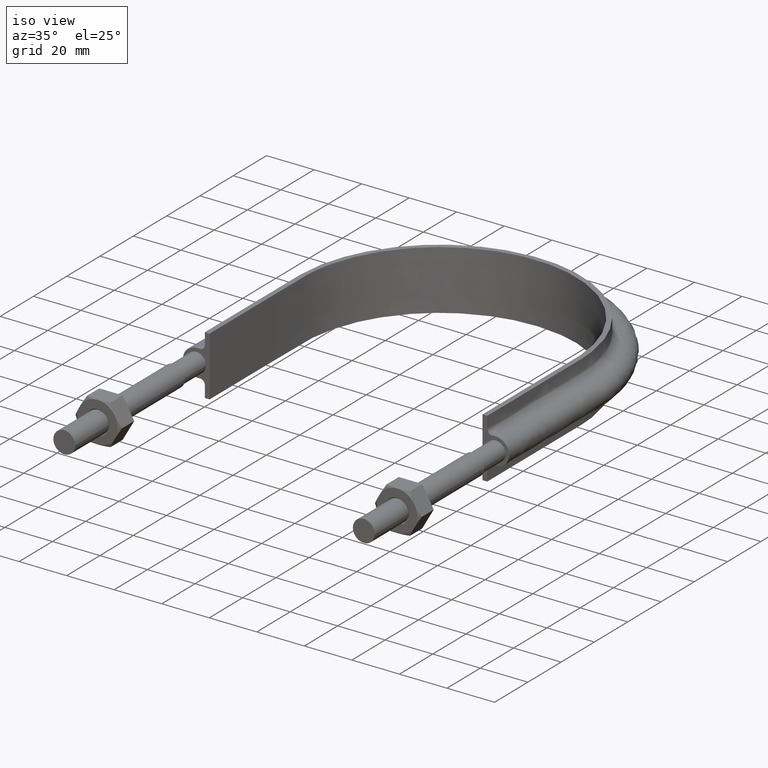
[diagram: clean part render]
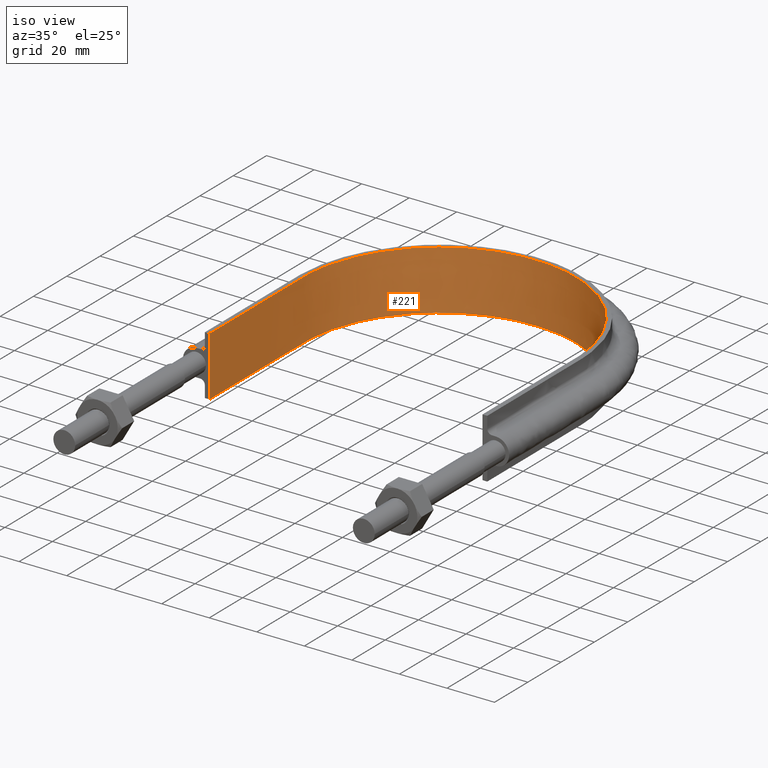
[diagram: tour spotlight — one face highlighted and labeled with its STEP entity id]
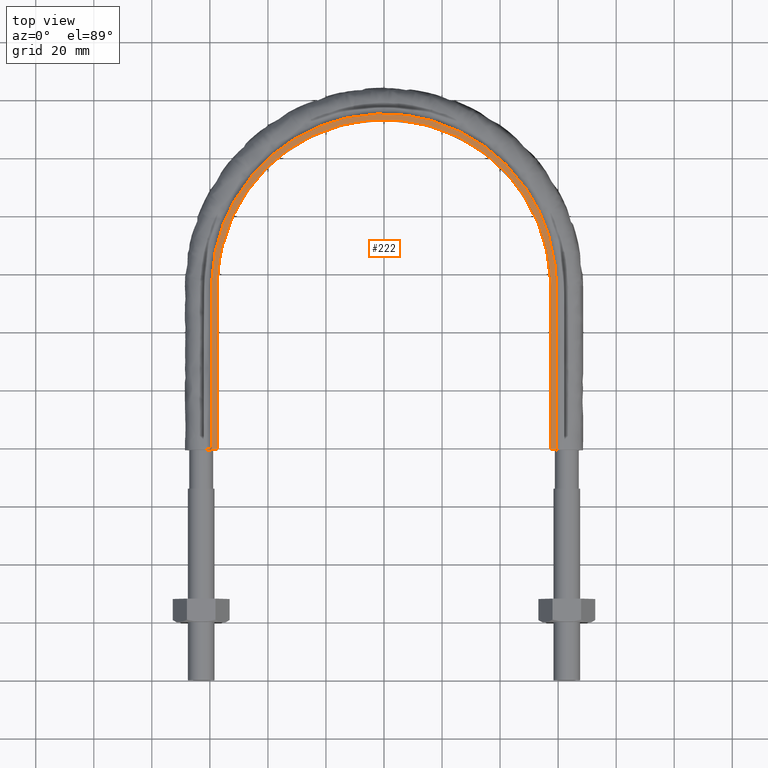
[diagram: tour spotlight — one face highlighted and labeled with its STEP entity id]
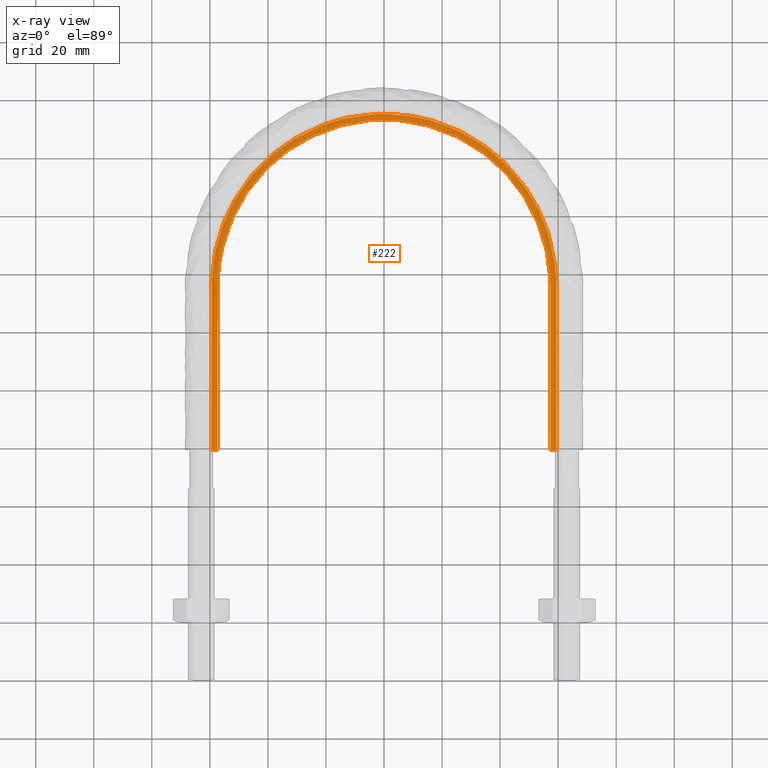
[diagram: x-ray of the same camera — body ghosted, this tour face saturated]
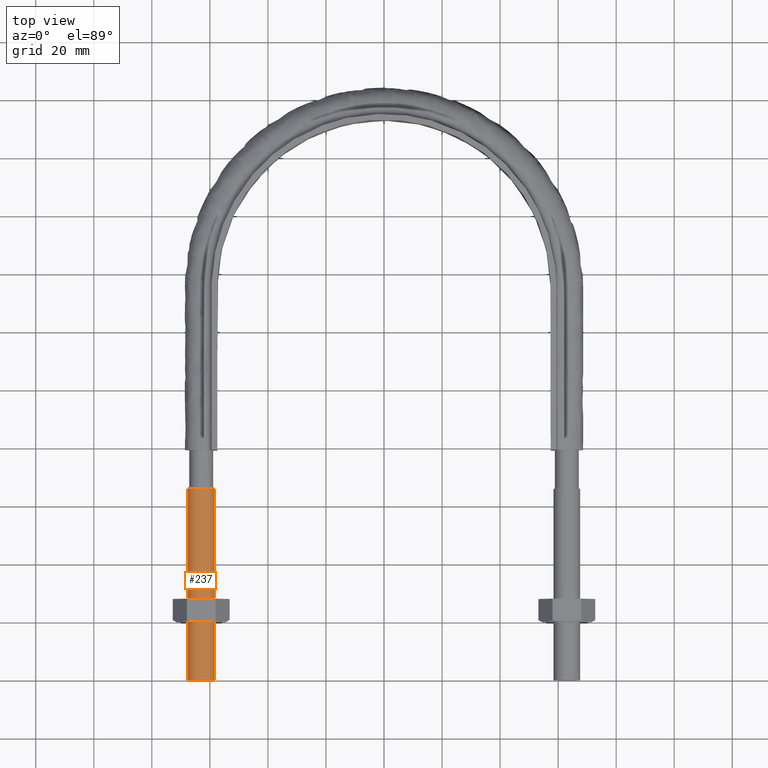
[diagram: tour spotlight — one face highlighted and labeled with its STEP entity id]
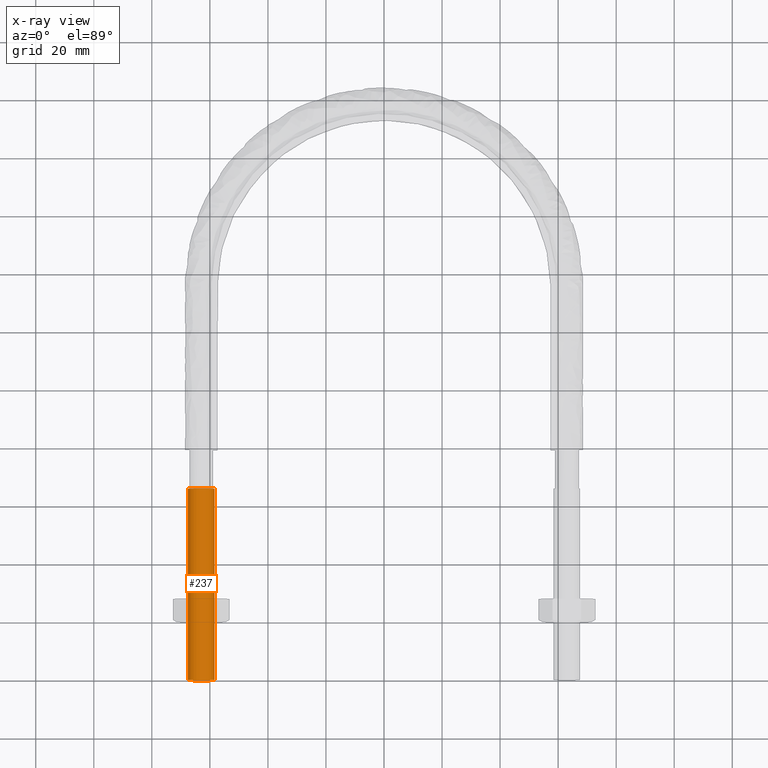
[diagram: x-ray of the same camera — body ghosted, this tour face saturated]
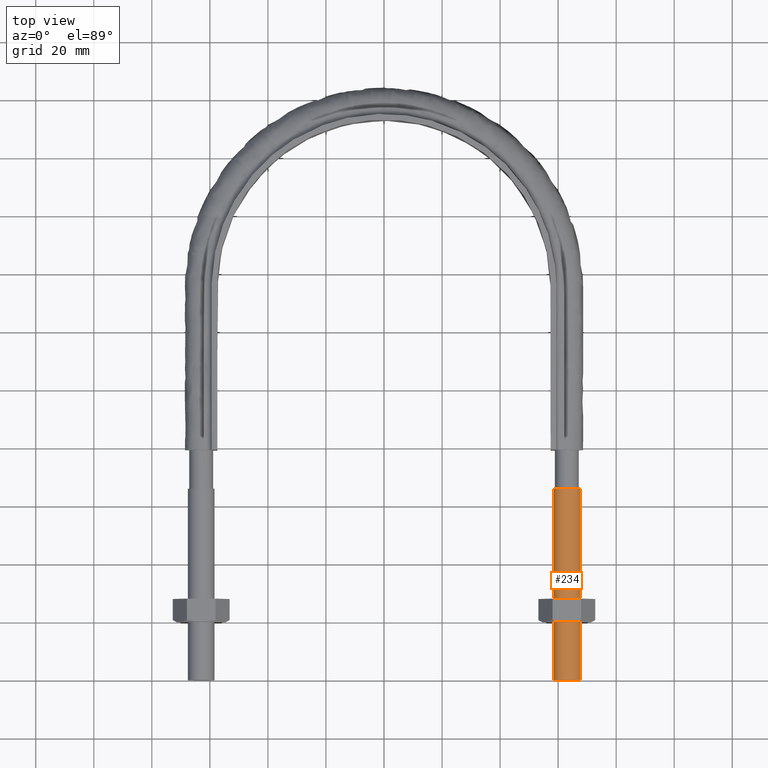
[diagram: tour spotlight — one face highlighted and labeled with its STEP entity id]
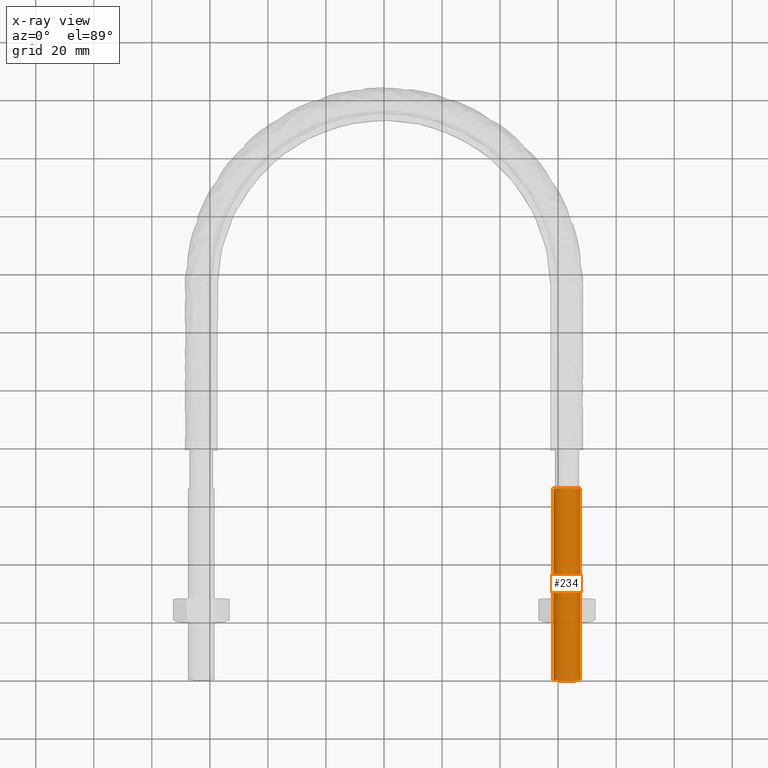
[diagram: x-ray of the same camera — body ghosted, this tour face saturated]
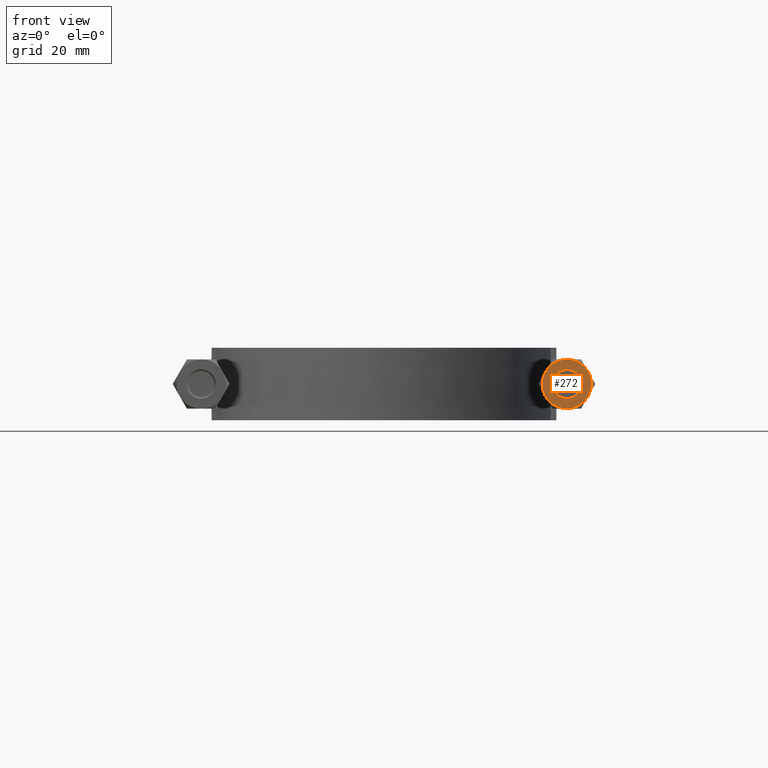
[diagram: tour spotlight — one face highlighted and labeled with its STEP entity id]
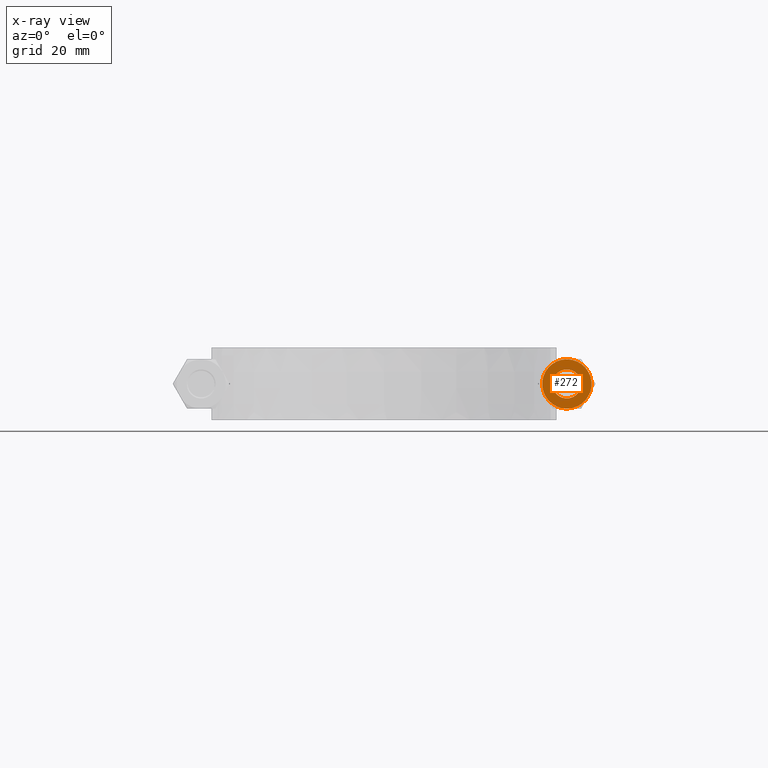
[diagram: x-ray of the same camera — body ghosted, this tour face saturated]
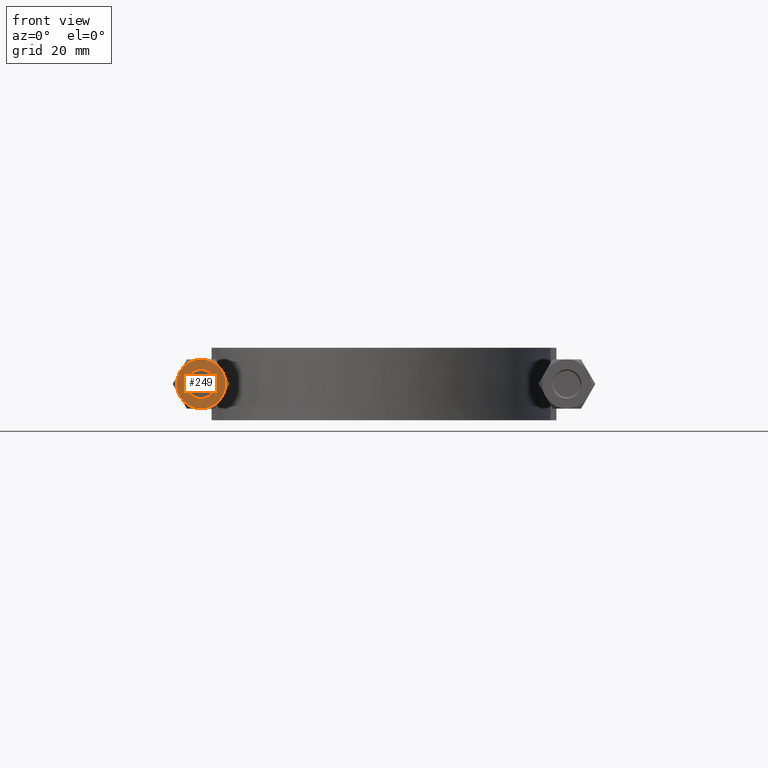
[diagram: tour spotlight — one face highlighted and labeled with its STEP entity id]
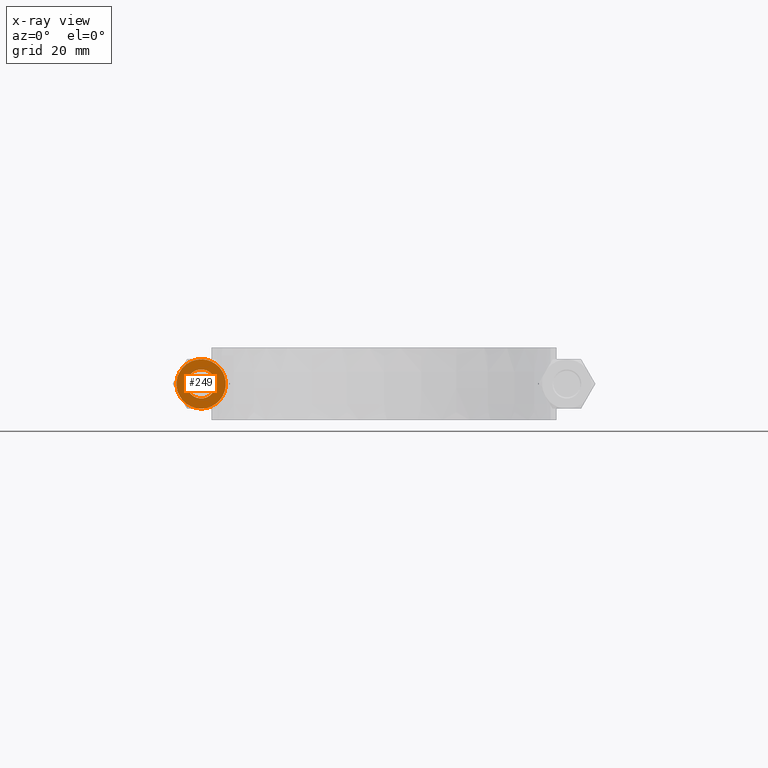
[diagram: x-ray of the same camera — body ghosted, this tour face saturated]
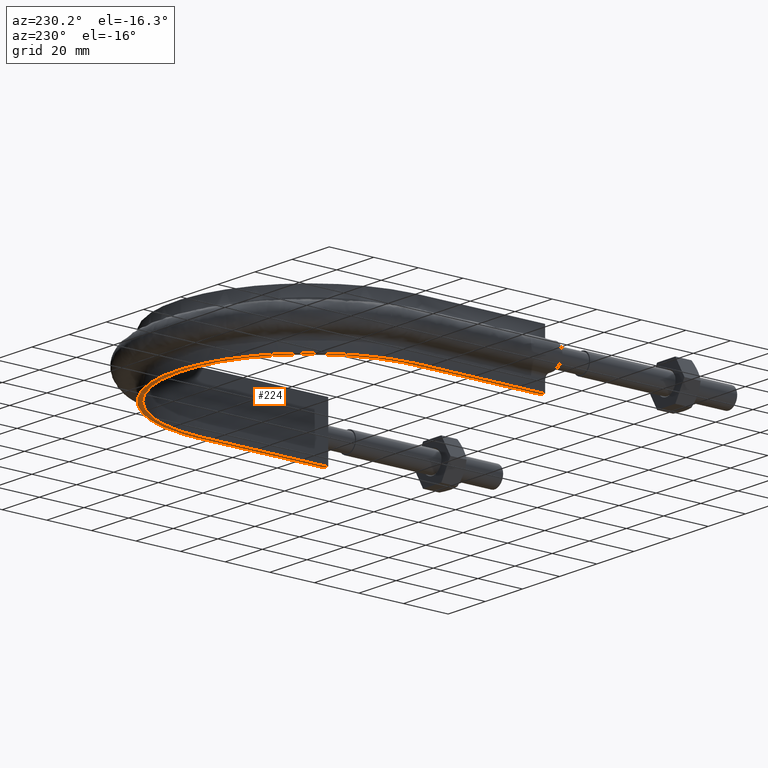
[diagram: tour spotlight — one face highlighted and labeled with its STEP entity id]
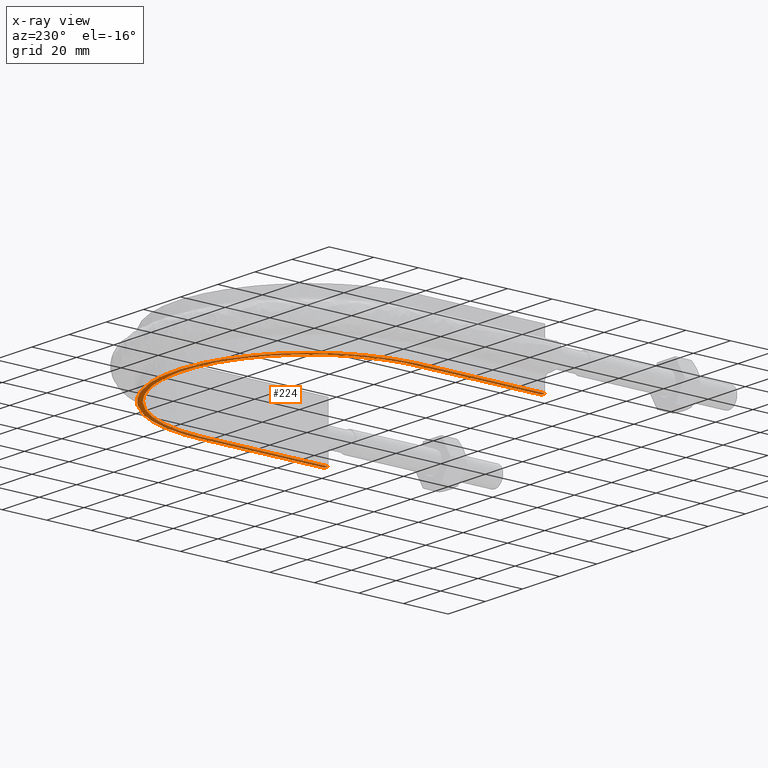
[diagram: x-ray of the same camera — body ghosted, this tour face saturated]
A machine part: a face-by-face anatomy tour. The part has 75 B-rep faces; the first image is the clean iso view, then the 7 largest visible faces are spotlighted one at a time (largest first), each with its STEP entity span.

Face 1 — iso view, entity #221. In plain terms, the highlighted face is a SurfaceOfExtrusion surface.
Definition (entity closure, byte-faithful):
#221 = ADVANCED_FACE( '', ( #299 ), #300, .T. );
#299 = FACE_OUTER_BOUND( '', #466, .T. );
#300 = SURFACE_OF_LINEAR_EXTRUSION( '', #467, #468 );
#466 = EDGE_LOOP( '', ( #1298, #1299, #1300, #1301 ) );
#467 = B_SPLINE_CURVE_WITH_KNOTS( '', 3, ( #1302, #1303, #1304, #1305, #1306, #1307, #1308, #1309, #1310, #1311, #1312, #1313, #1314, #1315, #1316, #1317 ), .UNSPECIFIED., .F., .F., ( 4, 3, 1, 1, 1, 1, 1, 1, 3, 4 ), ( -8.93693843594010, -8.00000000000000, -7.00000000000000, -6.00000000000000, -5.00000000000000, -4.00000000000000, -3.00000000000000, -2.00000000000000, -1.00000000000000, -0.0630615640599001 ), .UNSPECIFIED. );
#468 = VECTOR( '', #1318, 1000.00000000000 );
#1298 = ORIENTED_EDGE( '', *, *, #1817, .T. );
#1299 = ORIENTED_EDGE( '', *, *, #1825, .T. );
#1300 = ORIENTED_EDGE( '', *, *, #1822, .F. );
#1301 = ORIENTED_EDGE( '', *, *, #1826, .T. );
#1302 = CARTESIAN_POINT( '', ( 57.4000000000000, 79.3000000000000, 12.5000100000910 ) );
#1303 = CARTESIAN_POINT( '', ( 57.4000000000000, 98.0700000000000, 12.5000100000910 ) );
#1304 = CARTESIAN_POINT( '', ( 57.4000000000000, 116.840000000000, 12.5000100000910 ) );
#1305 = CARTESIAN_POINT( '', ( 57.4000000000000, 135.610000000000, 12.5000100000910 ) );
#1306 = CARTESIAN_POINT( '', ( 57.4000000000000, 144.180493203978, 12.5000100000910 ) );
#1307 = CARTESIAN_POINT( '', ( 53.4810424094545, 161.371852668646, 12.5000100000910 ) );
#1308 = CARTESIAN_POINT( '', ( 37.0100296725023, 182.017335605858, 12.5000100000910 ) );
#1309 = CARTESIAN_POINT( '', ( 13.2087266606841, 193.481567469912, 12.5000100000910 ) );
#1310 = CARTESIAN_POINT( '', ( -13.2087266606841, 193.481567469912, 12.5000100000910 ) );
#1311 = CARTESIAN_POINT( '', ( -37.0100296725023, 182.017335605858, 12.5000100000910 ) );
#1312 = CARTESIAN_POINT( '', ( -53.4810424094545, 161.371852668646, 12.5000100000910 ) );
#1313 = CARTESIAN_POINT( '', ( -57.4000000000000, 144.180493203978, 12.5000100000910 ) );
#1314 = CARTESIAN_POINT( '', ( -57.4000000000000, 135.610000000000, 12.5000100000910 ) );
#1315 = CARTESIAN_POINT( '', ( -57.4000000000000, 116.840000000000, 12.5000100000910 ) );
#1316 = CARTESIAN_POINT( '', ( -57.4000000000000, 98.0700000000000, 12.5000100000910 ) );
#1317 = CARTESIAN_POINT( '', ( -57.4000000000000, 79.3000000000000, 12.5000100000910 ) );
#1318 = DIRECTION( '', ( 0.000000000000000, 0.000000000000000, -1.00000000000000 ) );
#1817 = EDGE_CURVE( '', #1967, #1968, #1969, .T. );
#1822 = EDGE_CURVE( '', #1975, #1978, #1979, .T. );
#1825 = EDGE_CURVE( '', #1968, #1978, #1983, .F. );
#1826 = EDGE_CURVE( '', #1975, #1967, #1984, .T. );
#1967 = VERTEX_POINT( '', #2213 );
#1968 = VERTEX_POINT( '', #2214 );
#1969 = LINE( '', #2215, #2216 );
#1975 = VERTEX_POINT( '', #2254 );
#1978 = VERTEX_POINT( '', #2258 );
#1979 = LINE( '', #2259, #2260 );
#1983 = B_SPLINE_CURVE_WITH_KNOTS( '', 3, ( #2295, #2296, #2297, #2298, #2299, #2300, #2301, #2302, #2303, #2304, #2305, #2306, #2307, #2308, #2309, #2310 ), .UNSPECIFIED., .F., .F., ( 4, 3, 1, 1, 1, 1, 1, 1, 3, 4 ), ( -8.93693843594010, -8.00000000000000, -7.00000000000000, -6.00000000000000, -5.00000000000000, -4.00000000000000, -3.00000000000000, -2.00000000000000, -1.00000000000000, -0.0630615640599001 ), .UNSPECIFIED. );
#1984 = B_SPLINE_CURVE_WITH_KNOTS( '', 3, ( #2311, #2312, #2313, #2314, #2315, #2316, #2317, #2318, #2319, #2320, #2321, #2322, #2323, #2324, #2325, #2326, #2327, #2328, #2329, #2330, #2331, #2332, #2333, #2334, #2335, #2336, #2337, #2338, #2339, #2340, #2341, #2342, #2343, #2344, #2345, #2346, #2347, #2348, #2349, #2350, #2351, #2352, #2353, #2354, #2355, #2356, #2357, #2358, #2359, #2360, #2361, #2362, #2363, #2364, #2365, #2366, #2367, #2368, #2369, #2370, #2371, #2372, #2373, #2374, #2375, #2376, #2377, #2378, #2379, #2380, #2381, #2382, #2383, #2384, #2385, #2386, #2387, #2388, #2389, #2390, #2391, #2392, #2393, #2394, #2395, #2396, #2397, #2398 ), .UNSPECIFIED., .F., .F., ( 4, 1, 2, 2, 2, 2, 2, 2, 2, 2, 2, 2, 2, 2, 2, 2, 2, 2, 2, 2, 2, 2, 2, 2, 2, 2, 2, 2, 2, 2, 2, 2, 2, 2, 2, 2, 2, 2, 2, 2, 2, 2, 2, 1, 4 ), ( 1.38777878078145E-017, 0.0368006591004070, 0.0552009886506104, 0.0575010298443858, 0.0598010710381612, 0.0644011534257120, 0.0736013182008137, 0.0782014005883644, 0.0805014417821398, 0.0828014829759152, 0.0920016477510167, 0.0966017301385675, 0.0989017713323428, 0.101201812526118, 0.110401977301220, 0.115002059688771, 0.117302100882546, 0.119602142076321, 0.128802306851423, 0.133402389238974, 0.135702430432749, 0.138002471626525, 0.147202636401626, 0.156402801176728, 0.158702842370503, 0.161002883564279, 0.165602965951830, 0.174803130726931, 0.177103171920707, 0.179403213114482, 0.184003295502033, 0.193203460277135, 0.195503501470910, 0.197803542664686, 0.202403625052237, 0.211603789827339, 0.213903831021114, 0.216203872214890, 0.220803954602440, 0.230004119377542, 0.234604201765093, 0.236904242958868, 0.239204284152644, 0.257604613702848, 0.294405272803255 ), .UNSPECIFIED. );
#2213 = CARTESIAN_POINT( '', ( -57.4000000000000, 79.3000000000000, 12.5000000000000 ) );
#2214 = CARTESIAN_POINT( '', ( -57.4000000000000, 79.3000000000000, -12.5000000000000 ) );
#2215 = CARTESIAN_POINT( '', ( -57.4000000000000, 79.3000000000000, 12.5000100000910 ) );
#2216 = VECTOR( '', #2871, 1000.00000000000 );
#2254 = CARTESIAN_POINT( '', ( 57.4000000000000, 79.3000000000000, 12.5000000000000 ) );
#2258 = CARTESIAN_POINT( '', ( 57.4000000000000, 79.3000000000000, -12.5000000000000 ) );
#2259 = CARTESIAN_POINT( '', ( 57.4000000000000, 79.3000000000000, 12.5000100000910 ) );
#2260 = VECTOR( '', #2875, 1000.00000000000 );
#2295 = CARTESIAN_POINT( '', ( 57.4000000000000, 79.3000000000000, -12.5000000000000 ) );
#2296 = CARTESIAN_POINT( '', ( 57.4000000000000, 98.0700000000000, -12.5000000000000 ) );
#2297 = CARTESIAN_POINT( '', ( 57.4000000000000, 116.840000000000, -12.5000000000000 ) );
#2298 = CARTESIAN_POINT( '', ( 57.4000000000000, 135.610000000000, -12.5000000000000 ) );
#2299 = CARTESIAN_POINT( '', ( 57.4000000000000, 144.180493203978, -12.5000000000000 ) );
#2300 = CARTESIAN_POINT( '', ( 53.4810424094545, 161.371852668646, -12.5000000000000 ) );
#2301 = CARTESIAN_POINT( '', ( 37.0100296725023, 182.017335605858, -12.5000000000000 ) );
#2302 = CARTESIAN_POINT( '', ( 13.2087266606841, 193.481567469912, -12.5000000000000 ) );
#2303 = CARTESIAN_POINT( '', ( -13.2087266606841, 193.481567469912, -12.5000000000000 ) );
#2304 = CARTESIAN_POINT( '', ( -37.0100296725023, 182.017335605858, -12.5000000000000 ) );
#2305 = CARTESIAN_POINT( '', ( -53.4810424094545, 161.371852668646, -12.5000000000000 ) );
#2306 = CARTESIAN_POINT( '', ( -57.4000000000000, 144.180493203978, -12.5000000000000 ) );
#2307 = CARTESIAN_POINT( '', ( -57.4000000000000, 135.610000000000, -12.5000000000000 ) );
#2308 = CARTESIAN_POINT( '', ( -57.4000000000000, 116.840000000000, -12.5000000000000 ) );
#2309 = CARTESIAN_POINT( '', ( -57.4000000000000, 98.0700000000000, -12.5000000000000 ) );
#2310 = CARTESIAN_POINT( '', ( -57.4000000000000, 79.3000000000000, -12.5000000000000 ) );
#2311 = CARTESIAN_POINT( '', ( 57.4000000000000, 79.3000000000000, 12.5000000000000 ) );
#2312 = CARTESIAN_POINT( '', ( 57.4000000000000, 91.5668971504807, 12.5000000000000 ) );
#2313 = CARTESIAN_POINT( '', ( 57.3999999999999, 109.967242876202, 12.5000000000000 ) );
#2314 = CARTESIAN_POINT( '', ( 57.4000000000000, 128.367588601923, 12.5000000000000 ) );
#2315 = CARTESIAN_POINT( '', ( 57.4000000000000, 135.267718249068, 12.5000000000000 ) );
#2316 = CARTESIAN_POINT( '', ( 57.4036066457801, 136.034404103252, 12.5000000000000 ) );
#2317 = CARTESIAN_POINT( '', ( 57.3712056389476, 137.567723284528, 12.5000000000000 ) );
#2318 = CARTESIAN_POINT( '', ( 57.3393359788148, 138.335375304587, 12.5000000000000 ) );
#2319 = CARTESIAN_POINT( '', ( 57.1976234100830, 140.630663469964, 12.5000000000000 ) );
#2320 = CARTESIAN_POINT( '', ( 57.0421967518527, 142.147180453960, 12.5000000000000 ) );
#2321 = CARTESIAN_POINT( '', ( 56.4004013757546, 146.657352705709, 12.5000000000000 ) );
#2322 = CARTESIAN_POINT( '', ( 55.7399883057787, 149.611959318388, 12.5000000000000 ) );
#2323 = CARTESIAN_POINT( '', ( 54.4013047063944, 153.965777471156, 12.5000000000000 ) );
#2324 = CARTESIAN_POINT( '', ( 53.8966972928596, 155.403952132018, 12.5000000000000 ) );
#2325 = CARTESIAN_POINT( '', ( 53.0487681131459, 157.540793277909, 12.5000000000000 ) );
#2326 = CARTESIAN_POINT( '', ( 52.7511260023257, 158.248939019185, 12.5000000000000 ) );
#2327 = CARTESIAN_POINT( '', ( 52.1306487491250, 159.645579267383, 12.5000000000000 ) );
#2328 = CARTESIAN_POINT( '', ( 51.8071932048134, 160.335643312284, 12.5000000000000 ) );
#2329 = CARTESIAN_POINT( '', ( 50.1243560027939, 163.745011154793, 12.5000000000000 ) );
#2330 = CARTESIAN_POINT( '', ( 48.5704537429598, 166.342805722192, 12.5000000000000 ) );
#2331 = CARTESIAN_POINT( '', ( 45.9378759805746, 170.051022440817, 12.5000000000000 ) );
#2332 = CARTESIAN_POINT( '', ( 45.0097482486540, 171.255485755391, 12.5000000000000 ) );
#2333 = CARTESIAN_POINT( '', ( 43.5399840512469, 173.013724230868, 12.5000000000000 ) );
#2334 = CARTESIAN_POINT( '', ( 43.0360401908088, 173.592882580464, 12.5000000000000 ) );
#2335 = CARTESIAN_POINT( '', ( 42.0071679355062, 174.728730541199, 12.5000000000000 ) );
#2336 = CARTESIAN_POINT( '', ( 41.4830799771194, 175.284602734684, 12.5000000000000 ) );
#2337 = CARTESIAN_POINT( '', ( 38.8150256208344, 178.004509636062, 12.5000000000000 ) );
#2338 = CARTESIAN_POINT( '', ( 36.5289375337687, 179.991083678086, 12.5000000000000 ) );
#2339 = CARTESIAN_POINT( '', ( 32.8725465474707, 182.687177301449, 12.5000000000000 ) );
#2340 = CARTESIAN_POINT( '', ( 31.6159998625506, 183.538738914915, 12.5000000000000 ) );
#2341 = CARTESIAN_POINT( '', ( 29.6741600235065, 184.744883379300, 12.5000000000000 ) );
#2342 = CARTESIAN_POINT( '', ( 29.0173621705766, 185.135046972002, 12.5000000000000 ) );
#2343 = CARTESIAN_POINT( '', ( 27.6844813094560, 185.891293691475, 12.5000000000000 ) );
#2344 = CARTESIAN_POINT( '', ( 27.0092860879621, 186.256786401143, 12.5000000000000 ) );
#2345 = CARTESIAN_POINT( '', ( 23.6148955512581, 188.008321558919, 12.5000000000000 ) );
#2346 = CARTESIAN_POINT( '', ( 20.8188839208599, 189.181221130253, 12.5000000000000 ) );
#2347 = CARTESIAN_POINT( '', ( 16.5063575914379, 190.604430974850, 12.5000000000000 ) );
#2348 = CARTESIAN_POINT( '', ( 15.0489724833802, 191.022456876127, 12.5000000000000 ) );
#2349 = CARTESIAN_POINT( '', ( 12.8322199583377, 191.562489310090, 12.5000000000000 ) );
#2350 = CARTESIAN_POINT( '', ( 12.0881682606316, 191.727937467103, 12.5000000000000 ) );
#2351 = CARTESIAN_POINT( '', ( 10.5896803128535, 192.029378956679, 12.5000000000000 ) );
#2352 = CARTESIAN_POINT( '', ( 9.83354107507648, 192.165648447287, 12.5000000000000 ) );
#2353 = CARTESIAN_POINT( '', ( 6.05033946504675, 192.768951449387, 12.5000000000000 ) );
#2354 = CARTESIAN_POINT( '', ( 3.02331961872758, 193.004107282322, 12.5000000000000 ) );
#2355 = CARTESIAN_POINT( '', ( -3.03159229771697, 193.003674706656, 12.5000000000000 ) );
#2356 = CARTESIAN_POINT( '', ( -6.05948435362837, 192.768093969407, 12.5000000000000 ) );
#2357 = CARTESIAN_POINT( '', ( -9.84492369258696, 192.163681704028, 12.5000000000000 ) );
#2358 = CARTESIAN_POINT( '', ( -10.6002721762766, 192.027389123451, 12.5000000000000 ) );
#2359 = CARTESIAN_POINT( '', ( -12.0978185021846, 191.725853405146, 12.5000000000000 ) );
#2360 = CARTESIAN_POINT( '', ( -12.8414452252182, 191.560367013092, 12.5000000000000 ) );
#2361 = CARTESIAN_POINT( '', ( -15.0570550081487, 191.020235378931, 12.5000000000000 ) );
#2362 = CARTESIAN_POINT( '', ( -16.5138535706965, 190.602163316094, 12.5000000000000 ) );
#2363 = CARTESIAN_POINT( '', ( -20.8250913381978, 189.178758755140, 12.5000000000000 ) );
#2364 = CARTESIAN_POINT( '', ( -23.6208691240753, 188.005657850112, 12.5000000000000 ) );
#2365 = CARTESIAN_POINT( '', ( -27.0156329102762, 186.253406103617, 12.5000000000000 ) );
#2366 = CARTESIAN_POINT( '', ( -27.6910147520961, 185.887696886022, 12.5000000000000 ) );
#2367 = CARTESIAN_POINT( '', ( -29.0234575114924, 185.131477440111, 12.5000000000000 ) );
#2368 = CARTESIAN_POINT( '', ( -29.6800585802788, 184.741324040592, 12.5000000000000 ) );
#2369 = CARTESIAN_POINT( '', ( -31.6213689725299, 183.535193660409, 12.5000000000000 ) );
#2370 = CARTESIAN_POINT( '', ( -32.8776437603806, 182.683619457023, 12.5000000000000 ) );
#2371 = CARTESIAN_POINT( '', ( -36.5334220827474, 179.987374398228, 12.5000000000000 ) );
#2372 = CARTESIAN_POINT( '', ( -38.8193751731554, 178.000549631674, 12.5000000000000 ) );
#2373 = CARTESIAN_POINT( '', ( -41.4874843976751, 175.279993585617, 12.5000000000000 ) );
#2374 = CARTESIAN_POINT( '', ( -42.0115944312469, 174.723974530570, 12.5000000000000 ) );
#2375 = CARTESIAN_POINT( '', ( -43.0405299781913, 173.587794110931, 12.5000000000000 ) );
#2376 = CARTESIAN_POINT( '', ( -43.5442393747025, 173.008765306377, 12.5000000000000 ) );
#2377 = CARTESIAN_POINT( '', ( -45.0135877457227, 171.250627800789, 12.5000000000000 ) );
#2378 = CARTESIAN_POINT( '', ( -45.9415210243652, 170.046162448528, 12.5000000000000 ) );
#2379 = CARTESIAN_POINT( '', ( -48.5736917716304, 166.337694282144, 12.5000000000000 ) );
#2380 = CARTESIAN_POINT( '', ( -50.1275589688898, 163.739408642437, 12.5000000000000 ) );
#2381 = CARTESIAN_POINT( '', ( -51.8104283189418, 160.328866111214, 12.5000000000000 ) );
#2382 = CARTESIAN_POINT( '', ( -52.1338941649286, 159.638538815899, 12.5000000000000 ) );
#2383 = CARTESIAN_POINT( '', ( -52.7543954652597, 158.241312252746, 12.5000000000000 ) );
#2384 = CARTESIAN_POINT( '', ( -53.0520667494114, 157.532782600104, 12.5000000000000 ) );
#2385 = CARTESIAN_POINT( '', ( -53.8993605656226, 155.396631283103, 12.5000000000000 ) );
#2386 = CARTESIAN_POINT( '', ( -54.4036525659498, 153.958777453083, 12.5000000000000 ) );
#2387 = CARTESIAN_POINT( '', ( -55.7415838846628, 149.605493588584, 12.5000000000000 ) );
#2388 = CARTESIAN_POINT( '', ( -56.4017548199478, 146.650676383386, 12.5000000000000 ) );
#2389 = CARTESIAN_POINT( '', ( -57.0431251208449, 142.139233624254, 12.5000000000000 ) );
#2390 = CARTESIAN_POINT( '', ( -57.1984001624354, 140.622133130998, 12.5000000000000 ) );
#2391 = CARTESIAN_POINT( '', ( -57.3398068241163, 138.325705356889, 12.5000000000000 ) );
#2392 = CARTESIAN_POINT( '', ( -57.3715266179354, 137.558403382567, 12.5000000000000 ) );
#2393 = CARTESIAN_POINT( '', ( -57.4036727794918, 136.025333757737, 12.5000000000000 ) );
#2394 = CARTESIAN_POINT( '', ( -57.4000000000000, 135.258769855845, 12.5000000000000 ) );
#2395 = CARTESIAN_POINT( '', ( -57.4000000000000, 128.359743435262, 12.5000000000000 ) );
#2396 = CARTESIAN_POINT( '', ( -57.4000000000000, 109.962339647038, 12.5000000000000 ) );
#2397 = CARTESIAN_POINT( '', ( -57.4000000000000, 91.5649358588154, 12.5000000000000 ) );
#2398 = CARTESIAN_POINT( '', ( -57.4000000000000, 79.3000000000001, 12.5000000000000 ) );
#2871 = DIRECTION( '', ( 0.000000000000000, 0.000000000000000, -1.00000000000000 ) );
#2875 = DIRECTION( '', ( 0.000000000000000, 0.000000000000000, -1.00000000000000 ) );

Face 2 — top view, entity #222. An x-ray twin of the same camera follows (body ghosted, this face saturated) — the face is partly hidden behind the body. In plain terms, the highlighted planar face has unit normal (0, 0, 1).
Definition (entity closure, byte-faithful):
#222 = ADVANCED_FACE( '', ( #301 ), #302, .T. );
#301 = FACE_OUTER_BOUND( '', #469, .T. );
#302 = PLANE( '', #470 );
#469 = EDGE_LOOP( '', ( #1319, #1320, #1321, #1322 ) );
#470 = AXIS2_PLACEMENT_3D( '', #1323, #1324, #1325 );
#1319 = ORIENTED_EDGE( '', *, *, #1818, .T. );
#1320 = ORIENTED_EDGE( '', *, *, #1826, .F. );
#1321 = ORIENTED_EDGE( '', *, *, #1821, .T. );
#1322 = ORIENTED_EDGE( '', *, *, #1827, .F. );
#1323 = CARTESIAN_POINT( '', ( 75.0000000000000, 209.300000000000, 12.5000000000000 ) );
#1324 = DIRECTION( '', ( 0.000000000000000, 0.000000000000000, 1.00000000000000 ) );
#1325 = DIRECTION( '', ( 1.22460635382238E-016, 1.00000000000000, 0.000000000000000 ) );
#1818 = EDGE_CURVE( '', #1970, #1967, #1971, .T. );
#1821 = EDGE_CURVE( '', #1975, #1976, #1977, .T. );
#1826 = EDGE_CURVE( '', #1975, #1967, #1984, .T. );
#1827 = EDGE_CURVE( '', #1970, #1976, #1985, .T. );
#1967 = VERTEX_POINT( '', #2213 );
#1970 = VERTEX_POINT( '', #2217 );
#1971 = LINE( '', #2218, #2219 );
#1975 = VERTEX_POINT( '', #2254 );
#1976 = VERTEX_POINT( '', #2255 );
#1977 = LINE( '', #2256, #2257 );
#1984 = B_SPLINE_CURVE_WITH_KNOTS( '', 3, ( #2311, #2312, #2313, #2314, #2315, #2316, #2317, #2318, #2319, #2320, #2321, #2322, #2323, #2324, #2325, #2326, #2327, #2328, #2329, #2330, #2331, #2332, #2333, #2334, #2335, #2336, #2337, #2338, #2339, #2340, #2341, #2342, #2343, #2344, #2345, #2346, #2347, #2348, #2349, #2350, #2351, #2352, #2353, #2354, #2355, #2356, #2357, #2358, #2359, #2360, #2361, #2362, #2363, #2364, #2365, #2366, #2367, #2368, #2369, #2370, #2371, #2372, #2373, #2374, #2375, #2376, #2377, #2378, #2379, #2380, #2381, #2382, #2383, #2384, #2385, #2386, #2387, #2388, #2389, #2390, #2391, #2392, #2393, #2394, #2395, #2396, #2397, #2398 ), .UNSPECIFIED., .F., .F., ( 4, 1, 2, 2, 2, 2, 2, 2, 2, 2, 2, 2, 2, 2, 2, 2, 2, 2, 2, 2, 2, 2, 2, 2, 2, 2, 2, 2, 2, 2, 2, 2, 2, 2, 2, 2, 2, 2, 2, 2, 2, 2, 2, 1, 4 ), ( 1.38777878078145E-017, 0.0368006591004070, 0.0552009886506104, 0.0575010298443858, 0.0598010710381612, 0.0644011534257120, 0.0736013182008137, 0.0782014005883644, 0.0805014417821398, 0.0828014829759152, 0.0920016477510167, 0.0966017301385675, 0.0989017713323428, 0.101201812526118, 0.110401977301220, 0.115002059688771, 0.117302100882546, 0.119602142076321, 0.128802306851423, 0.133402389238974, 0.135702430432749, 0.138002471626525, 0.147202636401626, 0.156402801176728, 0.158702842370503, 0.161002883564279, 0.165602965951830, 0.174803130726931, 0.177103171920707, 0.179403213114482, 0.184003295502033, 0.193203460277135, 0.195503501470910, 0.197803542664686, 0.202403625052237, 0.211603789827339, 0.213903831021114, 0.216203872214890, 0.220803954602440, 0.230004119377542, 0.234604201765093, 0.236904242958868, 0.239204284152644, 0.257604613702848, 0.294405272803255 ), .UNSPECIFIED. );
#1985 = B_SPLINE_CURVE_WITH_KNOTS( '', 3, ( #2399, #2400, #2401, #2402, #2403, #2404, #2405, #2406, #2407, #2408, #2409, #2410, #2411, #2412, #2413, #2414 ), .UNSPECIFIED., .F., .F., ( 4, 3, 1, 1, 1, 1, 1, 1, 3, 4 ), ( 0.0630615640599002, 1.00000000000000, 2.00000000000000, 3.00000000000000, 4.00000000000000, 5.00000000000000, 6.00000000000000, 7.00000000000000, 8.00000000000000, 8.93693843594010 ), .UNSPECIFIED. );
#2213 = CARTESIAN_POINT( '', ( -57.4000000000000, 79.3000000000000, 12.5000000000000 ) );
#2217 = CARTESIAN_POINT( '', ( -59.4000000000000, 79.3000000000000, 12.5000000000000 ) );
#2218 = CARTESIAN_POINT( '', ( -75.0000000000000, 79.3000000000000, 12.5000000000000 ) );
#2219 = VECTOR( '', #2872, 1000.00000000000 );
#2254 = CARTESIAN_POINT( '', ( 57.4000000000000, 79.3000000000000, 12.5000000000000 ) );
#2255 = CARTESIAN_POINT( '', ( 59.4000000000000, 79.3000000000000, 12.5000000000000 ) );
#2256 = CARTESIAN_POINT( '', ( -75.0000000000000, 79.3000000000000, 12.5000000000000 ) );
#2257 = VECTOR( '', #2874, 1000.00000000000 );
#2311 = CARTESIAN_POINT( '', ( 57.4000000000000, 79.3000000000000, 12.5000000000000 ) );
#2312 = CARTESIAN_POINT( '', ( 57.4000000000000, 91.5668971504807, 12.5000000000000 ) );
#2313 = CARTESIAN_POINT( '', ( 57.3999999999999, 109.967242876202, 12.5000000000000 ) );
#2314 = CARTESIAN_POINT( '', ( 57.4000000000000, 128.367588601923, 12.5000000000000 ) );
#2315 = CARTESIAN_POINT( '', ( 57.4000000000000, 135.267718249068, 12.5000000000000 ) );
#2316 = CARTESIAN_POINT( '', ( 57.4036066457801, 136.034404103252, 12.5000000000000 ) );
#2317 = CARTESIAN_POINT( '', ( 57.3712056389476, 137.567723284528, 12.5000000000000 ) );
#2318 = CARTESIAN_POINT( '', ( 57.3393359788148, 138.335375304587, 12.5000000000000 ) );
#2319 = CARTESIAN_POINT( '', ( 57.1976234100830, 140.630663469964, 12.5000000000000 ) );
#2320 = CARTESIAN_POINT( '', ( 57.0421967518527, 142.147180453960, 12.5000000000000 ) );
#2321 = CARTESIAN_POINT( '', ( 56.4004013757546, 146.657352705709, 12.5000000000000 ) );
#2322 = CARTESIAN_POINT( '', ( 55.7399883057787, 149.611959318388, 12.5000000000000 ) );
#2323 = CARTESIAN_POINT( '', ( 54.4013047063944, 153.965777471156, 12.5000000000000 ) );
#2324 = CARTESIAN_POINT( '', ( 53.8966972928596, 155.403952132018, 12.5000000000000 ) );
#2325 = CARTESIAN_POINT( '', ( 53.0487681131459, 157.540793277909, 12.5000000000000 ) );
#2326 = CARTESIAN_POINT( '', ( 52.7511260023257, 158.248939019185, 12.5000000000000 ) );
#2327 = CARTESIAN_POINT( '', ( 52.1306487491250, 159.645579267383, 12.5000000000000 ) );
#2328 = CARTESIAN_POINT( '', ( 51.8071932048134, 160.335643312284, 12.5000000000000 ) );
#2329 = CARTESIAN_POINT( '', ( 50.1243560027939, 163.745011154793, 12.5000000000000 ) );
#2330 = CARTESIAN_POINT( '', ( 48.5704537429598, 166.342805722192, 12.5000000000000 ) );
#2331 = CARTESIAN_POINT( '', ( 45.9378759805746, 170.051022440817, 12.5000000000000 ) );
#2332 = CARTESIAN_POINT( '', ( 45.0097482486540, 171.255485755391, 12.5000000000000 ) );
#2333 = CARTESIAN_POINT( '', ( 43.5399840512469, 173.013724230868, 12.5000000000000 ) );
#2334 = CARTESIAN_POINT( '', ( 43.0360401908088, 173.592882580464, 12.5000000000000 ) );
#2335 = CARTESIAN_POINT( '', ( 42.0071679355062, 174.728730541199, 12.5000000000000 ) );
#2336 = CARTESIAN_POINT( '', ( 41.4830799771194, 175.284602734684, 12.5000000000000 ) );
#2337 = CARTESIAN_POINT( '', ( 38.8150256208344, 178.004509636062, 12.5000000000000 ) );
#2338 = CARTESIAN_POINT( '', ( 36.5289375337687, 179.991083678086, 12.5000000000000 ) );
#2339 = CARTESIAN_POINT( '', ( 32.8725465474707, 182.687177301449, 12.5000000000000 ) );
#2340 = CARTESIAN_POINT( '', ( 31.6159998625506, 183.538738914915, 12.5000000000000 ) );
#2341 = CARTESIAN_POINT( '', ( 29.6741600235065, 184.744883379300, 12.5000000000000 ) );
#2342 = CARTESIAN_POINT( '', ( 29.0173621705766, 185.135046972002, 12.5000000000000 ) );
#2343 = CARTESIAN_POINT( '', ( 27.6844813094560, 185.891293691475, 12.5000000000000 ) );
#2344 = CARTESIAN_POINT( '', ( 27.0092860879621, 186.256786401143, 12.5000000000000 ) );
#2345 = CARTESIAN_POINT( '', ( 23.6148955512581, 188.008321558919, 12.5000000000000 ) );
#2346 = CARTESIAN_POINT( '', ( 20.8188839208599, 189.181221130253, 12.5000000000000 ) );
#2347 = CARTESIAN_POINT( '', ( 16.5063575914379, 190.604430974850, 12.5000000000000 ) );
#2348 = CARTESIAN_POINT( '', ( 15.0489724833802, 191.022456876127, 12.5000000000000 ) );
#2349 = CARTESIAN_POINT( '', ( 12.8322199583377, 191.562489310090, 12.5000000000000 ) );
#2350 = CARTESIAN_POINT( '', ( 12.0881682606316, 191.727937467103, 12.5000000000000 ) );
#2351 = CARTESIAN_POINT( '', ( 10.5896803128535, 192.029378956679, 12.5000000000000 ) );
#2352 = CARTESIAN_POINT( '', ( 9.83354107507648, 192.165648447287, 12.5000000000000 ) );
#2353 = CARTESIAN_POINT( '', ( 6.05033946504675, 192.768951449387, 12.5000000000000 ) );
#2354 = CARTESIAN_POINT( '', ( 3.02331961872758, 193.004107282322, 12.5000000000000 ) );
#2355 = CARTESIAN_POINT( '', ( -3.03159229771697, 193.003674706656, 12.5000000000000 ) );
#2356 = CARTESIAN_POINT( '', ( -6.05948435362837, 192.768093969407, 12.5000000000000 ) );
#2357 = CARTESIAN_POINT( '', ( -9.84492369258696, 192.163681704028, 12.5000000000000 ) );
#2358 = CARTESIAN_POINT( '', ( -10.6002721762766, 192.027389123451, 12.5000000000000 ) );
#2359 = CARTESIAN_POINT( '', ( -12.0978185021846, 191.725853405146, 12.5000000000000 ) );
#2360 = CARTESIAN_POINT( '', ( -12.8414452252182, 191.560367013092, 12.5000000000000 ) );
#2361 = CARTESIAN_POINT( '', ( -15.0570550081487, 191.020235378931, 12.5000000000000 ) );
#2362 = CARTESIAN_POINT( '', ( -16.5138535706965, 190.602163316094, 12.5000000000000 ) );
#2363 = CARTESIAN_POINT( '', ( -20.8250913381978, 189.178758755140, 12.5000000000000 ) );
#2364 = CARTESIAN_POINT( '', ( -23.6208691240753, 188.005657850112, 12.5000000000000 ) );
#2365 = CARTESIAN_POINT( '', ( -27.0156329102762, 186.253406103617, 12.5000000000000 ) );
#2366 = CARTESIAN_POINT( '', ( -27.6910147520961, 185.887696886022, 12.5000000000000 ) );
#2367 = CARTESIAN_POINT( '', ( -29.0234575114924, 185.131477440111, 12.5000000000000 ) );
#2368 = CARTESIAN_POINT( '', ( -29.6800585802788, 184.741324040592, 12.5000000000000 ) );
#2369 = CARTESIAN_POINT( '', ( -31.6213689725299, 183.535193660409, 12.5000000000000 ) );
#2370 = CARTESIAN_POINT( '', ( -32.8776437603806, 182.683619457023, 12.5000000000000 ) );
#2371 = CARTESIAN_POINT( '', ( -36.5334220827474, 179.987374398228, 12.5000000000000 ) );
#2372 = CARTESIAN_POINT( '', ( -38.8193751731554, 178.000549631674, 12.5000000000000 ) );
#2373 = CARTESIAN_POINT( '', ( -41.4874843976751, 175.279993585617, 12.5000000000000 ) );
#2374 = CARTESIAN_POINT( '', ( -42.0115944312469, 174.723974530570, 12.5000000000000 ) );
#2375 = CARTESIAN_POINT( '', ( -43.0405299781913, 173.587794110931, 12.5000000000000 ) );
#2376 = CARTESIAN_POINT( '', ( -43.5442393747025, 173.008765306377, 12.5000000000000 ) );
#2377 = CARTESIAN_POINT( '', ( -45.0135877457227, 171.250627800789, 12.5000000000000 ) );
#2378 = CARTESIAN_POINT( '', ( -45.9415210243652, 170.046162448528, 12.5000000000000 ) );
#2379 = CARTESIAN_POINT( '', ( -48.5736917716304, 166.337694282144, 12.5000000000000 ) );
#2380 = CARTESIAN_POINT( '', ( -50.1275589688898, 163.739408642437, 12.5000000000000 ) );
#2381 = CARTESIAN_POINT( '', ( -51.8104283189418, 160.328866111214, 12.5000000000000 ) );
#2382 = CARTESIAN_POINT( '', ( -52.1338941649286, 159.638538815899, 12.5000000000000 ) );
#2383 = CARTESIAN_POINT( '', ( -52.7543954652597, 158.241312252746, 12.5000000000000 ) );
#2384 = CARTESIAN_POINT( '', ( -53.0520667494114, 157.532782600104, 12.5000000000000 ) );
#2385 = CARTESIAN_POINT( '', ( -53.8993605656226, 155.396631283103, 12.5000000000000 ) );
#2386 = CARTESIAN_POINT( '', ( -54.4036525659498, 153.958777453083, 12.5000000000000 ) );
#2387 = CARTESIAN_POINT( '', ( -55.7415838846628, 149.605493588584, 12.5000000000000 ) );
#2388 = CARTESIAN_POINT( '', ( -56.4017548199478, 146.650676383386, 12.5000000000000 ) );
#2389 = CARTESIAN_POINT( '', ( -57.0431251208449, 142.139233624254, 12.5000000000000 ) );
#2390 = CARTESIAN_POINT( '', ( -57.1984001624354, 140.622133130998, 12.5000000000000 ) );
#2391 = CARTESIAN_POINT( '', ( -57.3398068241163, 138.325705356889, 12.5000000000000 ) );
#2392 = CARTESIAN_POINT( '', ( -57.3715266179354, 137.558403382567, 12.5000000000000 ) );
#2393 = CARTESIAN_POINT( '', ( -57.4036727794918, 136.025333757737, 12.5000000000000 ) );
#2394 = CARTESIAN_POINT( '', ( -57.4000000000000, 135.258769855845, 12.5000000000000 ) );
#2395 = CARTESIAN_POINT( '', ( -57.4000000000000, 128.359743435262, 12.5000000000000 ) );
#2396 = CARTESIAN_POINT( '', ( -57.4000000000000, 109.962339647038, 12.5000000000000 ) );
#2397 = CARTESIAN_POINT( '', ( -57.4000000000000, 91.5649358588154, 12.5000000000000 ) );
#2398 = CARTESIAN_POINT( '', ( -57.4000000000000, 79.3000000000001, 12.5000000000000 ) );
#2399 = CARTESIAN_POINT( '', ( -59.4000000000000, 79.3000000000000, 12.5000000000000 ) );
#2400 = CARTESIAN_POINT( '', ( -59.4000000000000, 98.0700000000001, 12.5000000000000 ) );
#2401 = CARTESIAN_POINT( '', ( -59.4000000000000, 116.840000000000, 12.5000000000000 ) );
#2402 = CARTESIAN_POINT( '', ( -59.4000000000000, 135.610000000000, 12.5000000000000 ) );
#2403 = CARTESIAN_POINT( '', ( -59.4000000000000, 144.484817836499, 12.5000000000000 ) );
#2404 = CARTESIAN_POINT( '', ( -55.3444933644878, 162.266836188810, 12.5000000000000 ) );
#2405 = CARTESIAN_POINT( '', ( -38.2995777447149, 183.635011205915, 12.5000000000000 ) );
#2406 = CARTESIAN_POINT( '', ( -13.6689610391051, 195.497859339137, 12.5000000000000 ) );
#2407 = CARTESIAN_POINT( '', ( 13.6689610391052, 195.497859339137, 12.5000000000000 ) );
#2408 = CARTESIAN_POINT( '', ( 38.2995777447150, 183.635011205915, 12.5000000000000 ) );
#2409 = CARTESIAN_POINT( '', ( 55.3444933644878, 162.266836188810, 12.5000000000000 ) );
#2410 = CARTESIAN_POINT( '', ( 59.4000000000000, 144.484817836499, 12.5000000000000 ) );
#2411 = CARTESIAN_POINT( '', ( 59.4000000000000, 135.610000000000, 12.5000000000000 ) );
#2412 = CARTESIAN_POINT( '', ( 59.4000000000000, 116.840000000000, 12.5000000000000 ) );
#2413 = CARTESIAN_POINT( '', ( 59.4000000000000, 98.0700000000000, 12.5000000000000 ) );
#2414 = CARTESIAN_POINT( '', ( 59.4000000000000, 79.3000000000000, 12.5000000000000 ) );
#2872 = DIRECTION( '', ( 1.00000000000000, -1.22460635382238E-016, 0.000000000000000 ) );
#2874 = DIRECTION( '', ( 1.00000000000000, -1.22460635382238E-016, 0.000000000000000 ) );

Face 3 — top view, entity #237. An x-ray twin of the same camera follows (body ghosted, this face saturated) — the face is partly hidden behind the body. In plain terms, the highlighted cylindrical surface (bore or boss wall) has radius 4.6 mm, axis along (0, 1, 0).
Definition (entity closure, byte-faithful):
#237 = ADVANCED_FACE( '', ( #336, #337 ), #338, .T. );
#336 = FACE_OUTER_BOUND( '', #1158, .T. );
#337 = FACE_OUTER_BOUND( '', #1159, .T. );
#338 = CYLINDRICAL_SURFACE( '', #1160, 4.60000000000000 );
#1158 = EDGE_LOOP( '', ( #1417 ) );
#1159 = EDGE_LOOP( '', ( #1418 ) );
#1160 = AXIS2_PLACEMENT_3D( '', #1419, #1420, #1421 );
#1417 = ORIENTED_EDGE( '', *, *, #1861, .T. );
#1418 = ORIENTED_EDGE( '', *, *, #1862, .F. );
#1419 = CARTESIAN_POINT( '', ( -63.0000000000000, 66.0000000000000, 4.04120096761385E-015 ) );
#1420 = DIRECTION( '', ( 2.44921270764475E-016, 1.00000000000000, 6.12303176911189E-017 ) );
#1421 = DIRECTION( '', ( 1.00000000000000, -2.44921270764475E-016, 2.44921270764475E-016 ) );
#1861 = EDGE_CURVE( '', #2037, #2037, #2038, .T. );
#1862 = EDGE_CURVE( '', #2039, #2039, #2040, .T. );
#2037 = VERTEX_POINT( '', #2523 );
#2038 = CIRCLE( '', #2524, 4.60000000000000 );
#2039 = VERTEX_POINT( '', #2525 );
#2040 = CIRCLE( '', #2526, 4.60000000000000 );
#2523 = CARTESIAN_POINT( '', ( -58.4000000000000, 66.0000000000000, 5.16783881313043E-015 ) );
#2524 = AXIS2_PLACEMENT_3D( '', #2931, #2932, #2933 );
#2525 = CARTESIAN_POINT( '', ( -58.4000000000000, 6.58838218356439E-015, 1.12663784551659E-015 ) );
#2526 = AXIS2_PLACEMENT_3D( '', #2934, #2935, #2936 );
#2931 = CARTESIAN_POINT( '', ( -63.0000000000000, 66.0000000000000, 4.04120096761385E-015 ) );
#2932 = DIRECTION( '', ( -2.44921270764475E-016, -1.00000000000000, -6.12303176911189E-017 ) );
#2933 = DIRECTION( '', ( 1.00000000000000, -2.44921270764475E-016, 2.44921270764475E-016 ) );
#2934 = CARTESIAN_POINT( '', ( -63.0000000000000, 7.71502002908098E-015, 0.000000000000000 ) );
#2935 = DIRECTION( '', ( -2.44921270764475E-016, -1.00000000000000, -6.12303176911189E-017 ) );
#2936 = DIRECTION( '', ( 1.00000000000000, -2.44921270764475E-016, 2.44921270764475E-016 ) );

Face 4 — top view, entity #234. An x-ray twin of the same camera follows (body ghosted, this face saturated) — the face is partly hidden behind the body. In plain terms, the highlighted cylindrical surface (bore or boss wall) has radius 4.6 mm, axis along (0, 1, 0).
Definition (entity closure, byte-faithful):
#234 = ADVANCED_FACE( '', ( #328, #329 ), #330, .T. );
#328 = FACE_OUTER_BOUND( '', #1150, .T. );
#329 = FACE_OUTER_BOUND( '', #1151, .T. );
#330 = CYLINDRICAL_SURFACE( '', #1152, 4.59999999999999 );
#1150 = EDGE_LOOP( '', ( #1403 ) );
#1151 = EDGE_LOOP( '', ( #1404 ) );
#1152 = AXIS2_PLACEMENT_3D( '', #1405, #1406, #1407 );
#1403 = ORIENTED_EDGE( '', *, *, #1859, .T. );
#1404 = ORIENTED_EDGE( '', *, *, #1860, .F. );
#1405 = CARTESIAN_POINT( '', ( 63.0000000000000, 66.0000000000000, 4.04120096761385E-015 ) );
#1406 = DIRECTION( '', ( 2.44921270764476E-016, 1.00000000000000, 6.12303176911189E-017 ) );
#1407 = DIRECTION( '', ( 1.00000000000000, -2.44921270764476E-016, 2.44921270764476E-016 ) );
#1859 = EDGE_CURVE( '', #2033, #2033, #2034, .T. );
#1860 = EDGE_CURVE( '', #2035, #2035, #2036, .T. );
#2033 = VERTEX_POINT( '', #2519 );
#2034 = CIRCLE( '', #2520, 4.59999999999999 );
#2035 = VERTEX_POINT( '', #2521 );
#2036 = CIRCLE( '', #2522, 4.59999999999999 );
#2519 = CARTESIAN_POINT( '', ( 67.6000000000000, 66.0000000000000, 5.16783881313043E-015 ) );
#2520 = AXIS2_PLACEMENT_3D( '', #2925, #2926, #2927 );
#2521 = CARTESIAN_POINT( '', ( 67.6000000000000, -8.84165787459756E-015, 1.12663784551659E-015 ) );
#2522 = AXIS2_PLACEMENT_3D( '', #2928, #2929, #2930 );
#2925 = CARTESIAN_POINT( '', ( 63.0000000000000, 66.0000000000000, 4.04120096761385E-015 ) );
#2926 = DIRECTION( '', ( -2.44921270764476E-016, -1.00000000000000, -6.12303176911189E-017 ) );
#2927 = DIRECTION( '', ( 1.00000000000000, -2.44921270764476E-016, 2.44921270764476E-016 ) );
#2928 = CARTESIAN_POINT( '', ( 63.0000000000000, -7.71502002908098E-015, -1.54074395550979E-030 ) );
#2929 = DIRECTION( '', ( -2.44921270764476E-016, -1.00000000000000, -6.12303176911189E-017 ) );
#2930 = DIRECTION( '', ( 1.00000000000000, -2.44921270764476E-016, 2.44921270764476E-016 ) );

Face 5 — front view, entity #272. An x-ray twin of the same camera follows (body ghosted, this face saturated) — the face is partly hidden behind the body. In plain terms, the highlighted planar face has unit normal (0, 1, 0).
Definition (entity closure, byte-faithful):
#272 = ADVANCED_FACE( '', ( #413, #414 ), #415, .F. );
#413 = FACE_OUTER_BOUND( '', #1235, .T. );
#414 = FACE_BOUND( '', #1236, .T. );
#415 = PLANE( '', #1237 );
#1235 = EDGE_LOOP( '', ( #1651, #1652, #1653, #1654, #1655, #1656 ) );
#1236 = EDGE_LOOP( '', ( #1657 ) );
#1237 = AXIS2_PLACEMENT_3D( '', #1658, #1659, #1660 );
#1651 = ORIENTED_EDGE( '', *, *, #1919, .F. );
#1652 = ORIENTED_EDGE( '', *, *, #1920, .F. );
#1653 = ORIENTED_EDGE( '', *, *, #1921, .F. );
#1654 = ORIENTED_EDGE( '', *, *, #1922, .F. );
#1655 = ORIENTED_EDGE( '', *, *, #1917, .F. );
#1656 = ORIENTED_EDGE( '', *, *, #1923, .F. );
#1657 = ORIENTED_EDGE( '', *, *, #1924, .T. );
#1658 = CARTESIAN_POINT( '', ( 63.0000000000000, 20.0000000000000, -2.44921270764476E-016 ) );
#1659 = DIRECTION( '', ( 2.44921270764475E-016, 1.00000000000000, 6.12303176911189E-017 ) );
#1660 = DIRECTION( '', ( -0.866025403784439, 2.42723201254762E-016, -0.500000000000000 ) );
#1917 = EDGE_CURVE( '', #2130, #2132, #2133, .T. );
#1919 = EDGE_CURVE( '', #2135, #2136, #2137, .T. );
#1920 = EDGE_CURVE( '', #2138, #2135, #2139, .T. );
#1921 = EDGE_CURVE( '', #2140, #2138, #2141, .T. );
#1922 = EDGE_CURVE( '', #2132, #2140, #2142, .T. );
#1923 = EDGE_CURVE( '', #2136, #2130, #2143, .T. );
#1924 = EDGE_CURVE( '', #2144, #2144, #2145, .T. );
#2130 = VERTEX_POINT( '', #2702 );
#2132 = VERTEX_POINT( '', #2709 );
#2133 = CIRCLE( '', #2710, 8.50000000000000 );
#2135 = VERTEX_POINT( '', #2719 );
#2136 = VERTEX_POINT( '', #2720 );
#2137 = CIRCLE( '', #2721, 8.50000000000000 );
#2138 = VERTEX_POINT( '', #2722 );
#2139 = CIRCLE( '', #2723, 8.50000000000000 );
#2140 = VERTEX_POINT( '', #2724 );
#2141 = CIRCLE( '', #2725, 8.50000000000000 );
#2142 = CIRCLE( '', #2726, 8.50000000000000 );
#2143 = CIRCLE( '', #2727, 8.50000000000000 );
#2144 = VERTEX_POINT( '', #2728 );
#2145 = CIRCLE( '', #2729, 5.00000000000000 );
#2702 = CARTESIAN_POINT( '', ( 70.3612159321678, 20.0000000000000, 4.25000000000000 ) );
#2709 = CARTESIAN_POINT( '', ( 70.3612159321678, 20.0000000000000, -4.25000000000000 ) );
#2710 = AXIS2_PLACEMENT_3D( '', #3024, #3025, #3026 );
#2719 = CARTESIAN_POINT( '', ( 55.6387840678323, 20.0000000000000, 4.25000000000000 ) );
#2720 = CARTESIAN_POINT( '', ( 63.0000000000000, 20.0000000000000, 8.50000000000000 ) );
#2721 = AXIS2_PLACEMENT_3D( '', #3027, #3028, #3029 );
#2722 = CARTESIAN_POINT( '', ( 55.6387840678323, 20.0000000000000, -4.25000000000000 ) );
#2723 = AXIS2_PLACEMENT_3D( '', #3030, #3031, #3032 );
#2724 = CARTESIAN_POINT( '', ( 63.0000000000000, 20.0000000000000, -8.50000000000000 ) );
#2725 = AXIS2_PLACEMENT_3D( '', #3033, #3034, #3035 );
#2726 = AXIS2_PLACEMENT_3D( '', #3036, #3037, #3038 );
#2727 = AXIS2_PLACEMENT_3D( '', #3039, #3040, #3041 );
#2728 = CARTESIAN_POINT( '', ( 58.6698729810779, 20.0000000000000, -2.50000000000000 ) );
#2729 = AXIS2_PLACEMENT_3D( '', #3042, #3043, #3044 );
#3024 = CARTESIAN_POINT( '', ( 63.0000000000000, 20.0000000000000, -2.44921270764476E-016 ) );
#3025 = DIRECTION( '', ( 2.44921270764476E-016, 1.00000000000000, 6.12303176911189E-017 ) );
#3026 = DIRECTION( '', ( -0.866025403784439, 2.42723201254762E-016, -0.500000000000000 ) );
#3027 = CARTESIAN_POINT( '', ( 63.0000000000000, 20.0000000000000, -2.44921270764476E-016 ) );
#3028 = DIRECTION( '', ( 2.44921270764476E-016, 1.00000000000000, 6.12303176911189E-017 ) );
#3029 = DIRECTION( '', ( -0.866025403784439, 2.42723201254762E-016, -0.500000000000000 ) );
#3030 = CARTESIAN_POINT( '', ( 63.0000000000000, 20.0000000000000, -2.44921270764476E-016 ) );
#3031 = DIRECTION( '', ( 2.44921270764476E-016, 1.00000000000000, 6.12303176911189E-017 ) );
#3032 = DIRECTION( '', ( -0.866025403784439, 2.42723201254762E-016, -0.500000000000000 ) );
#3033 = CARTESIAN_POINT( '', ( 63.0000000000000, 20.0000000000000, -2.44921270764476E-016 ) );
#3034 = DIRECTION( '', ( 2.44921270764476E-016, 1.00000000000000, 6.12303176911189E-017 ) );
#3035 = DIRECTION( '', ( -0.866025403784439, 2.42723201254762E-016, -0.500000000000000 ) );
#3036 = CARTESIAN_POINT( '', ( 63.0000000000000, 20.0000000000000, -2.44921270764476E-016 ) );
#3037 = DIRECTION( '', ( 2.44921270764476E-016, 1.00000000000000, 6.12303176911189E-017 ) );
#3038 = DIRECTION( '', ( -0.866025403784439, 2.42723201254762E-016, -0.500000000000000 ) );
#3039 = CARTESIAN_POINT( '', ( 63.0000000000000, 20.0000000000000, -2.44921270764476E-016 ) );
#3040 = DIRECTION( '', ( 2.44921270764476E-016, 1.00000000000000, 6.12303176911189E-017 ) );
#3041 = DIRECTION( '', ( -0.866025403784439, 2.42723201254762E-016, -0.500000000000000 ) );
#3042 = CARTESIAN_POINT( '', ( 63.0000000000000, 20.0000000000000, -2.44921270764476E-016 ) );
#3043 = DIRECTION( '', ( 2.44921270764475E-016, 1.00000000000000, 6.12303176911189E-017 ) );
#3044 = DIRECTION( '', ( -0.866025403784439, 2.42723201254762E-016, -0.500000000000000 ) );

Face 6 — front view, entity #249. An x-ray twin of the same camera follows (body ghosted, this face saturated) — the face is partly hidden behind the body. In plain terms, the highlighted planar face has unit normal (0, 1, 0).
Definition (entity closure, byte-faithful):
#249 = ADVANCED_FACE( '', ( #362, #363 ), #364, .F. );
#362 = FACE_OUTER_BOUND( '', #1184, .T. );
#363 = FACE_BOUND( '', #1185, .T. );
#364 = PLANE( '', #1186 );
#1184 = EDGE_LOOP( '', ( #1478, #1479, #1480, #1481, #1482, #1483 ) );
#1185 = EDGE_LOOP( '', ( #1484 ) );
#1186 = AXIS2_PLACEMENT_3D( '', #1485, #1486, #1487 );
#1478 = ORIENTED_EDGE( '', *, *, #1867, .F. );
#1479 = ORIENTED_EDGE( '', *, *, #1868, .F. );
#1480 = ORIENTED_EDGE( '', *, *, #1869, .F. );
#1481 = ORIENTED_EDGE( '', *, *, #1870, .F. );
#1482 = ORIENTED_EDGE( '', *, *, #1865, .F. );
#1483 = ORIENTED_EDGE( '', *, *, #1871, .F. );
#1484 = ORIENTED_EDGE( '', *, *, #1872, .T. );
#1485 = CARTESIAN_POINT( '', ( -63.0000000000000, 20.0000000000000, -2.44921270764476E-016 ) );
#1486 = DIRECTION( '', ( 2.44921270764475E-016, 1.00000000000000, 6.12303176911189E-017 ) );
#1487 = DIRECTION( '', ( -0.866025403784439, 2.42723201254762E-016, -0.500000000000000 ) );
#1865 = EDGE_CURVE( '', #2044, #2046, #2047, .T. );
#1867 = EDGE_CURVE( '', #2049, #2050, #2051, .T. );
#1868 = EDGE_CURVE( '', #2052, #2049, #2053, .T. );
#1869 = EDGE_CURVE( '', #2054, #2052, #2055, .T. );
#1870 = EDGE_CURVE( '', #2046, #2054, #2056, .T. );
#1871 = EDGE_CURVE( '', #2050, #2044, #2057, .T. );
#1872 = EDGE_CURVE( '', #2058, #2058, #2059, .T. );
#2044 = VERTEX_POINT( '', #2530 );
#2046 = VERTEX_POINT( '', #2537 );
#2047 = CIRCLE( '', #2538, 8.50000000000000 );
#2049 = VERTEX_POINT( '', #2547 );
#2050 = VERTEX_POINT( '', #2548 );
#2051 = CIRCLE( '', #2549, 8.50000000000000 );
#2052 = VERTEX_POINT( '', #2550 );
#2053 = CIRCLE( '', #2551, 8.50000000000000 );
#2054 = VERTEX_POINT( '', #2552 );
#2055 = CIRCLE( '', #2553, 8.50000000000000 );
#2056 = CIRCLE( '', #2554, 8.50000000000000 );
#2057 = CIRCLE( '', #2555, 8.50000000000000 );
#2058 = VERTEX_POINT( '', #2556 );
#2059 = CIRCLE( '', #2557, 5.00000000000000 );
#2530 = CARTESIAN_POINT( '', ( -55.6387840678323, 20.0000000000000, 4.25000000000000 ) );
#2537 = CARTESIAN_POINT( '', ( -55.6387840678323, 20.0000000000000, -4.25000000000000 ) );
#2538 = AXIS2_PLACEMENT_3D( '', #2940, #2941, #2942 );
#2547 = CARTESIAN_POINT( '', ( -70.3612159321677, 20.0000000000000, 4.25000000000000 ) );
#2548 = CARTESIAN_POINT( '', ( -63.0000000000000, 20.0000000000000, 8.50000000000000 ) );
#2549 = AXIS2_PLACEMENT_3D( '', #2943, #2944, #2945 );
#2550 = CARTESIAN_POINT( '', ( -70.3612159321677, 20.0000000000000, -4.25000000000000 ) );
#2551 = AXIS2_PLACEMENT_3D( '', #2946, #2947, #2948 );
#2552 = CARTESIAN_POINT( '', ( -63.0000000000000, 20.0000000000000, -8.50000000000000 ) );
#2553 = AXIS2_PLACEMENT_3D( '', #2949, #2950, #2951 );
#2554 = AXIS2_PLACEMENT_3D( '', #2952, #2953, #2954 );
#2555 = AXIS2_PLACEMENT_3D( '', #2955, #2956, #2957 );
#2556 = CARTESIAN_POINT( '', ( -67.3301270189222, 20.0000000000000, -2.50000000000000 ) );
#2557 = AXIS2_PLACEMENT_3D( '', #2958, #2959, #2960 );
#2940 = CARTESIAN_POINT( '', ( -63.0000000000000, 20.0000000000000, -2.44921270764476E-016 ) );
#2941 = DIRECTION( '', ( 2.44921270764476E-016, 1.00000000000000, 6.12303176911189E-017 ) );
#2942 = DIRECTION( '', ( -0.866025403784439, 2.42723201254762E-016, -0.500000000000000 ) );
#2943 = CARTESIAN_POINT( '', ( -63.0000000000000, 20.0000000000000, -2.44921270764476E-016 ) );
#2944 = DIRECTION( '', ( 2.44921270764476E-016, 1.00000000000000, 6.12303176911189E-017 ) );
#2945 = DIRECTION( '', ( -0.866025403784439, 2.42723201254762E-016, -0.500000000000000 ) );
#2946 = CARTESIAN_POINT( '', ( -63.0000000000000, 20.0000000000000, -2.44921270764476E-016 ) );
#2947 = DIRECTION( '', ( 2.44921270764476E-016, 1.00000000000000, 6.12303176911189E-017 ) );
#2948 = DIRECTION( '', ( -0.866025403784439, 2.42723201254762E-016, -0.500000000000000 ) );
#2949 = CARTESIAN_POINT( '', ( -63.0000000000000, 20.0000000000000, -2.44921270764476E-016 ) );
#2950 = DIRECTION( '', ( 2.44921270764476E-016, 1.00000000000000, 6.12303176911189E-017 ) );
#2951 = DIRECTION( '', ( -0.866025403784439, 2.42723201254762E-016, -0.500000000000000 ) );
#2952 = CARTESIAN_POINT( '', ( -63.0000000000000, 20.0000000000000, -2.44921270764476E-016 ) );
#2953 = DIRECTION( '', ( 2.44921270764476E-016, 1.00000000000000, 6.12303176911189E-017 ) );
#2954 = DIRECTION( '', ( -0.866025403784439, 2.42723201254762E-016, -0.500000000000000 ) );
#2955 = CARTESIAN_POINT( '', ( -63.0000000000000, 20.0000000000000, -2.44921270764476E-016 ) );
#2956 = DIRECTION( '', ( 2.44921270764476E-016, 1.00000000000000, 6.12303176911189E-017 ) );
#2957 = DIRECTION( '', ( -0.866025403784439, 2.42723201254762E-016, -0.500000000000000 ) );
#2958 = CARTESIAN_POINT( '', ( -63.0000000000000, 20.0000000000000, -2.44921270764476E-016 ) );
#2959 = DIRECTION( '', ( 2.44921270764475E-016, 1.00000000000000, 6.12303176911189E-017 ) );
#2960 = DIRECTION( '', ( -0.866025403784439, 2.42723201254762E-016, -0.500000000000000 ) );

Face 7 — auxiliary view, entity #224. An x-ray twin of the same camera follows (body ghosted, this face saturated) — the face is partly hidden behind the body. In plain terms, the highlighted planar face has unit normal (0, 0, 1).
Definition (entity closure, byte-faithful):
#224 = ADVANCED_FACE( '', ( #305 ), #306, .F. );
#305 = FACE_OUTER_BOUND( '', #968, .T. );
#306 = PLANE( '', #969 );
#968 = EDGE_LOOP( '', ( #1330, #1331, #1332, #1333 ) );
#969 = AXIS2_PLACEMENT_3D( '', #1334, #1335, #1336 );
#1330 = ORIENTED_EDGE( '', *, *, #1825, .F. );
#1331 = ORIENTED_EDGE( '', *, *, #1820, .F. );
#1332 = ORIENTED_EDGE( '', *, *, #1828, .F. );
#1333 = ORIENTED_EDGE( '', *, *, #1823, .F. );
#1334 = CARTESIAN_POINT( '', ( 75.0000000000000, 209.300000000000, -12.5000000000000 ) );
#1335 = DIRECTION( '', ( 0.000000000000000, 0.000000000000000, 1.00000000000000 ) );
#1336 = DIRECTION( '', ( 1.22460635382238E-016, 1.00000000000000, 0.000000000000000 ) );
#1820 = EDGE_CURVE( '', #1972, #1968, #1974, .T. );
#1823 = EDGE_CURVE( '', #1978, #1980, #1981, .T. );
#1825 = EDGE_CURVE( '', #1968, #1978, #1983, .F. );
#1828 = EDGE_CURVE( '', #1980, #1972, #1986, .F. );
#1968 = VERTEX_POINT( '', #2214 );
#1972 = VERTEX_POINT( '', #2220 );
#1974 = LINE( '', #2252, #2253 );
#1978 = VERTEX_POINT( '', #2258 );
#1980 = VERTEX_POINT( '', #2261 );
#1981 = LINE( '', #2262, #2263 );
#1983 = B_SPLINE_CURVE_WITH_KNOTS( '', 3, ( #2295, #2296, #2297, #2298, #2299, #2300, #2301, #2302, #2303, #2304, #2305, #2306, #2307, #2308, #2309, #2310 ), .UNSPECIFIED., .F., .F., ( 4, 3, 1, 1, 1, 1, 1, 1, 3, 4 ), ( -8.93693843594010, -8.00000000000000, -7.00000000000000, -6.00000000000000, -5.00000000000000, -4.00000000000000, -3.00000000000000, -2.00000000000000, -1.00000000000000, -0.0630615640599001 ), .UNSPECIFIED. );
#1986 = B_SPLINE_CURVE_WITH_KNOTS( '', 3, ( #2415, #2416, #2417, #2418, #2419, #2420, #2421, #2422, #2423, #2424, #2425, #2426, #2427, #2428, #2429, #2430 ), .UNSPECIFIED., .F., .F., ( 4, 3, 1, 1, 1, 1, 1, 1, 3, 4 ), ( 0.0630615640599002, 1.00000000000000, 2.00000000000000, 3.00000000000000, 4.00000000000000, 5.00000000000000, 6.00000000000000, 7.00000000000000, 8.00000000000000, 8.93693843594010 ), .UNSPECIFIED. );
#2214 = CARTESIAN_POINT( '', ( -57.4000000000000, 79.3000000000000, -12.5000000000000 ) );
#2220 = CARTESIAN_POINT( '', ( -59.4000000000000, 79.3000000000000, -12.5000000000000 ) );
#2252 = CARTESIAN_POINT( '', ( -75.0000000000000, 79.3000000000000, -12.5000000000000 ) );
#2253 = VECTOR( '', #2873, 1000.00000000000 );
#2258 = CARTESIAN_POINT( '', ( 57.4000000000000, 79.3000000000000, -12.5000000000000 ) );
#2261 = CARTESIAN_POINT( '', ( 59.4000000000000, 79.3000000000000, -12.5000000000000 ) );
#2262 = CARTESIAN_POINT( '', ( -75.0000000000000, 79.3000000000000, -12.5000000000000 ) );
#2263 = VECTOR( '', #2876, 1000.00000000000 );
#2295 = CARTESIAN_POINT( '', ( 57.4000000000000, 79.3000000000000, -12.5000000000000 ) );
#2296 = CARTESIAN_POINT( '', ( 57.4000000000000, 98.0700000000000, -12.5000000000000 ) );
#2297 = CARTESIAN_POINT( '', ( 57.4000000000000, 116.840000000000, -12.5000000000000 ) );
#2298 = CARTESIAN_POINT( '', ( 57.4000000000000, 135.610000000000, -12.5000000000000 ) );
#2299 = CARTESIAN_POINT( '', ( 57.4000000000000, 144.180493203978, -12.5000000000000 ) );
#2300 = CARTESIAN_POINT( '', ( 53.4810424094545, 161.371852668646, -12.5000000000000 ) );
#2301 = CARTESIAN_POINT( '', ( 37.0100296725023, 182.017335605858, -12.5000000000000 ) );
#2302 = CARTESIAN_POINT( '', ( 13.2087266606841, 193.481567469912, -12.5000000000000 ) );
#2303 = CARTESIAN_POINT( '', ( -13.2087266606841, 193.481567469912, -12.5000000000000 ) );
#2304 = CARTESIAN_POINT( '', ( -37.0100296725023, 182.017335605858, -12.5000000000000 ) );
#2305 = CARTESIAN_POINT( '', ( -53.4810424094545, 161.371852668646, -12.5000000000000 ) );
#2306 = CARTESIAN_POINT( '', ( -57.4000000000000, 144.180493203978, -12.5000000000000 ) );
#2307 = CARTESIAN_POINT( '', ( -57.4000000000000, 135.610000000000, -12.5000000000000 ) );
#2308 = CARTESIAN_POINT( '', ( -57.4000000000000, 116.840000000000, -12.5000000000000 ) );
#2309 = CARTESIAN_POINT( '', ( -57.4000000000000, 98.0700000000000, -12.5000000000000 ) );
#2310 = CARTESIAN_POINT( '', ( -57.4000000000000, 79.3000000000000, -12.5000000000000 ) );
#2415 = CARTESIAN_POINT( '', ( -59.4000000000000, 79.3000000000000, -12.5000000000000 ) );
#2416 = CARTESIAN_POINT( '', ( -59.4000000000000, 98.0700000000001, -12.5000000000000 ) );
#2417 = CARTESIAN_POINT( '', ( -59.4000000000000, 116.840000000000, -12.5000000000000 ) );
#2418 = CARTESIAN_POINT( '', ( -59.4000000000000, 135.610000000000, -12.5000000000000 ) );
#2419 = CARTESIAN_POINT( '', ( -59.4000000000000, 144.484817836499, -12.5000000000000 ) );
#2420 = CARTESIAN_POINT( '', ( -55.3444933644878, 162.266836188810, -12.5000000000000 ) );
#2421 = CARTESIAN_POINT( '', ( -38.2995777447149, 183.635011205915, -12.5000000000000 ) );
#2422 = CARTESIAN_POINT( '', ( -13.6689610391051, 195.497859339138, -12.5000000000000 ) );
#2423 = CARTESIAN_POINT( '', ( 13.6689610391052, 195.497859339137, -12.5000000000000 ) );
#2424 = CARTESIAN_POINT( '', ( 38.2995777447150, 183.635011205915, -12.5000000000000 ) );
#2425 = CARTESIAN_POINT( '', ( 55.3444933644878, 162.266836188810, -12.5000000000000 ) );
#2426 = CARTESIAN_POINT( '', ( 59.4000000000000, 144.484817836499, -12.5000000000000 ) );
#2427 = CARTESIAN_POINT( '', ( 59.4000000000000, 135.610000000000, -12.5000000000000 ) );
#2428 = CARTESIAN_POINT( '', ( 59.4000000000000, 116.840000000000, -12.5000000000000 ) );
#2429 = CARTESIAN_POINT( '', ( 59.4000000000000, 98.0700000000000, -12.5000000000000 ) );
#2430 = CARTESIAN_POINT( '', ( 59.4000000000000, 79.3000000000000, -12.5000000000000 ) );
#2873 = DIRECTION( '', ( 1.00000000000000, -1.22460635382238E-016, 0.000000000000000 ) );
#2876 = DIRECTION( '', ( 1.00000000000000, -1.22460635382238E-016, 0.000000000000000 ) );